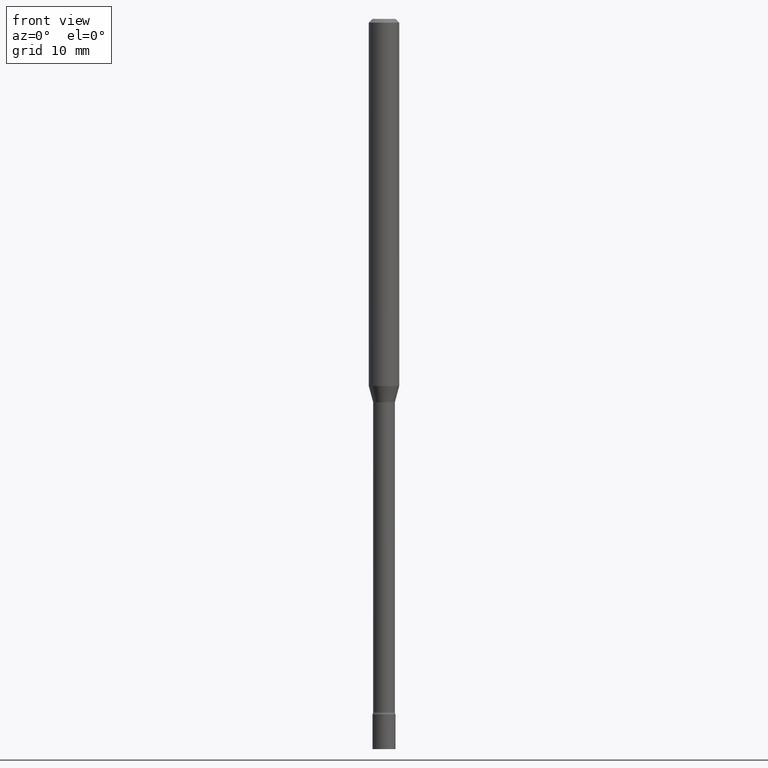
[diagram: clean part render]
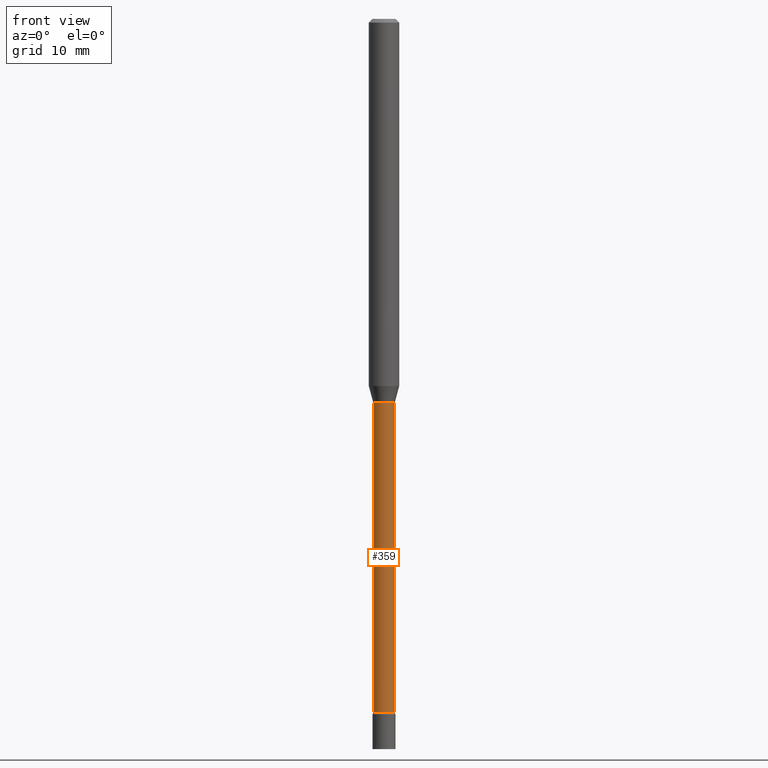
[diagram: same view with one face highlighted and labeled with its STEP entity id]
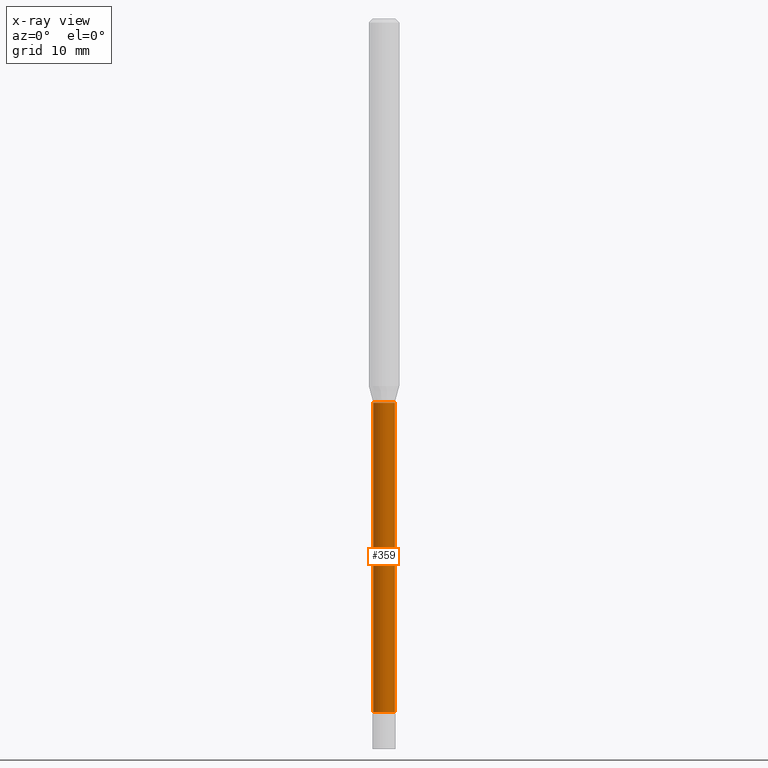
[diagram: x-ray of the same camera — body ghosted, the highlighted face saturated]
A machine part, front view. The second image highlights one B-rep face of the part: STEP entity #359.
The next image is the same camera in x-ray: the body ghosted, the highlighted face saturated — about 0% of this face is hidden behind the body in this view.
In plain terms, the highlighted cylindrical surface (edge-blend (fillet) strip) has radius 1.1341 mm, axis along (-0, 0, 1).
Its self-contained STEP definition (entity closure, byte-faithful):
#6 = LINE ( 'NONE', #321, #9 ) ;
#9 = VECTOR ( 'NONE', #483, 39.37007874015748143 ) ;
#23 = CARTESIAN_POINT ( 'NONE',  ( -0.04464999999999999525, -7.407956464872171030E-15, -1.576974787463811367 ) ) ;
#37 = EDGE_CURVE ( 'NONE', #225, #263, #6, .T. ) ;
#54 = CARTESIAN_POINT ( 'NONE',  ( 3.856442650883186298E-29, -5.505978042256032480E-15, -1.576974787463811367 ) ) ;
#72 = AXIS2_PLACEMENT_3D ( 'NONE', #153, #426, #432 ) ;
#76 = CARTESIAN_POINT ( 'NONE',  ( 0.04465000000000009933, -3.117892835586925182E-16, 2.177212930392890079E-30 ) ) ;
#106 = VERTEX_POINT ( 'NONE', #278 ) ;
#108 = DIRECTION ( 'NONE',  ( 1.000000000000000000, -6.982962677686258822E-15, 0.000000000000000000 ) ) ;
#124 = AXIS2_PLACEMENT_3D ( 'NONE', #382, #186, #270 ) ;
#153 = CARTESIAN_POINT ( 'NONE',  ( 0.000000000000000000, 0.000000000000000000, 0.000000000000000000 ) ) ;
#184 = EDGE_LOOP ( 'NONE', ( #280, #425, #512, #228 ) ) ;
#186 = DIRECTION ( 'NONE',  ( -2.445468806185136597E-29, 3.491481338843145583E-15, 1.000000000000000000 ) ) ;
#188 = CYLINDRICAL_SURFACE ( 'NONE', #72, 0.04465000000000009933 ) ;
#206 = DIRECTION ( 'NONE',  ( -2.445468806185136597E-29, 3.491481338843145583E-15, 1.000000000000000000 ) ) ;
#220 = FACE_OUTER_BOUND ( 'NONE', #184, .T. ) ;
#225 = VERTEX_POINT ( 'NONE', #253 ) ;
#228 = ORIENTED_EDGE ( 'NONE', *, *, #494, .F. ) ;
#253 = CARTESIAN_POINT ( 'NONE',  ( -0.04465000000000018954, -9.632423302297009755E-15, -2.848203551853162985 ) ) ;
#262 = CARTESIAN_POINT ( 'NONE',  ( 0.04464999999999999525, -5.817767325814724061E-15, -1.576974787463811367 ) ) ;
#263 = VERTEX_POINT ( 'NONE', #23 ) ;
#270 = DIRECTION ( 'NONE',  ( 1.000000000000000000, -6.982962677686249356E-15, 0.000000000000000000 ) ) ;
#278 = CARTESIAN_POINT ( 'NONE',  ( 0.04465000000000018954, -1.025623883408077648E-14, -2.848203551853162985 ) ) ;
#279 = CIRCLE ( 'NONE', #124, 0.04465000000000018954 ) ;
#280 = ORIENTED_EDGE ( 'NONE', *, *, #37, .F. ) ;
#321 = CARTESIAN_POINT ( 'NONE',  ( -0.04465000000000009933, 3.172573315168854388E-16, -2.196304517798820251E-30 ) ) ;
#340 = EDGE_CURVE ( 'NONE', #225, #106, #279, .T. ) ;
#359 = ADVANCED_FACE ( 'NONE', ( #220 ), #188, .T. ) ;
#382 = CARTESIAN_POINT ( 'NONE',  ( 6.965192939722619373E-29, -9.944449550522084107E-15, -2.848203551853162985 ) ) ;
#396 = CIRCLE ( 'NONE', #410, 0.04464999999999999525 ) ;
#410 = AXIS2_PLACEMENT_3D ( 'NONE', #54, #206, #108 ) ;
#423 = EDGE_CURVE ( 'NONE', #106, #434, #468, .T. ) ;
#425 = ORIENTED_EDGE ( 'NONE', *, *, #340, .T. ) ;
#426 = DIRECTION ( 'NONE',  ( -2.445468806185136597E-29, 3.491481338843145583E-15, 1.000000000000000000 ) ) ;
#432 = DIRECTION ( 'NONE',  ( 1.000000000000000000, -6.982962677686266711E-15, 4.876176775795935793E-29 ) ) ;
#434 = VERTEX_POINT ( 'NONE', #262 ) ;
#468 = LINE ( 'NONE', #76, #484 ) ;
#470 = DIRECTION ( 'NONE',  ( -2.445468806185136877E-29, 3.491481338843145188E-15, 1.000000000000000000 ) ) ;
#483 = DIRECTION ( 'NONE',  ( -2.445468806185136877E-29, 3.491481338843145188E-15, 1.000000000000000000 ) ) ;
#484 = VECTOR ( 'NONE', #470, 39.37007874015748143 ) ;
#494 = EDGE_CURVE ( 'NONE', #263, #434, #396, .T. ) ;
#512 = ORIENTED_EDGE ( 'NONE', *, *, #423, .T. ) ;